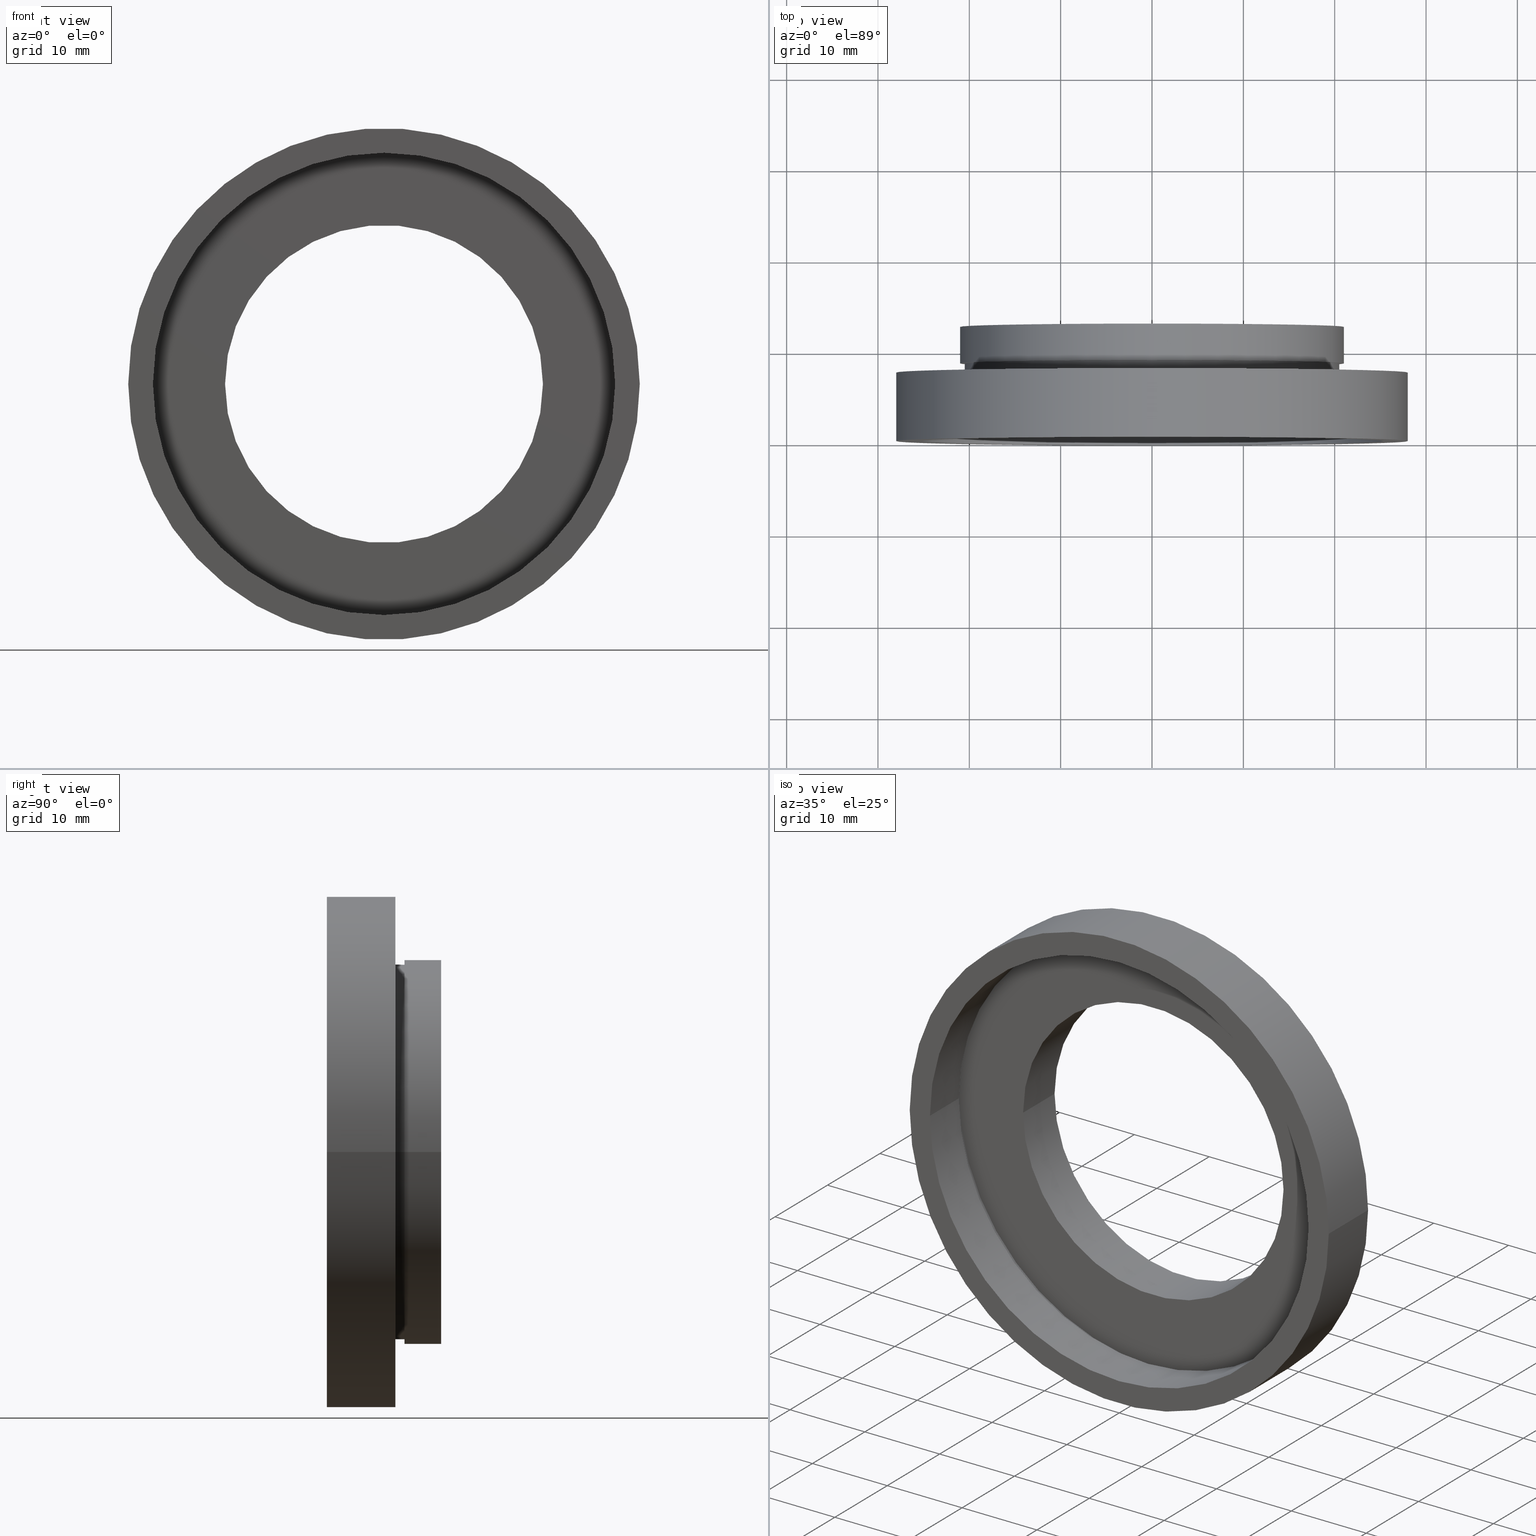
[diagram: canonical four-view strip — front | top / right | iso, engineering-drawing reading convention]
A machine part, canonical four-view strip (front | top / right | iso — engineering-drawing reading convention). The complete STEP part file that produces these views, byte-faithful:
ISO-10303-21;
HEADER;
FILE_DESCRIPTION (( 'STEP AP214' ),
    '1' );
FILE_NAME ('504098.STEP',
    '2019-10-08T02:53:30',
    ( '' ),
    ( '' ),
    'SwSTEP 2.0',
    'SolidWorks 2016',
    '' );
FILE_SCHEMA (( 'AUTOMOTIVE_DESIGN' ));
ENDSEC;

DATA;
#1 =( NAMED_UNIT ( * ) SI_UNIT ( $, .STERADIAN. ) SOLID_ANGLE_UNIT ( ) );
#2 = CIRCLE ( 'NONE', #318, 21.01000000000000200 ) ;
#3 = VECTOR ( 'NONE', #95, 1000.000000000000000 ) ;
#4 = ORIENTED_EDGE ( 'NONE', *, *, #256, .F. ) ;
#5 =( GEOMETRIC_REPRESENTATION_CONTEXT ( 3 ) GLOBAL_UNCERTAINTY_ASSIGNED_CONTEXT ( ( #262 ) ) GLOBAL_UNIT_ASSIGNED_CONTEXT ( ( #153, #622, #354 ) ) REPRESENTATION_CONTEXT ( 'NONE', 'WORKASPACE' ) );
#6 = CYLINDRICAL_SURFACE ( 'NONE', #329, 25.94999999999999900 ) ;
#7 = APPLICATION_CONTEXT ( 'automotive_design' ) ;
#8 = CARTESIAN_POINT ( 'NONE',  ( 25.94999999999999900, 5.499999999999998200, 3.177958443787381900E-015 ) ) ;
#9 = AXIS2_PLACEMENT_3D ( 'NONE', #376, #280, #601 ) ;
#10 = CARTESIAN_POINT ( 'NONE',  ( -20.50000000000000000, 7.499999999999995600, 0.0000000000000000000 ) ) ;
#11 = PLANE ( 'NONE',  #343 ) ;
#12 = CARTESIAN_POINT ( 'NONE',  ( 0.0000000000000000000, 16.88601823708207700, 0.0000000000000000000 ) ) ;
#13 = SURFACE_STYLE_FILL_AREA ( #469 ) ;
#14 =( NAMED_UNIT ( * ) SI_UNIT ( $, .STERADIAN. ) SOLID_ANGLE_UNIT ( ) );
#15 = COLOUR_RGB ( '',1.000000000000000000, 1.000000000000000000, 1.000000000000000000 ) ;
#16 = CARTESIAN_POINT ( 'NONE',  ( -20.50000000000000000, 8.499999999999996400, 0.0000000000000000000 ) ) ;
#17 = FILL_AREA_STYLE ('',( #413 ) ) ;
#18 = VECTOR ( 'NONE', #617, 1000.000000000000000 ) ;
#19 = EDGE_CURVE ( 'NONE', #191, #394, #35, .T. ) ;
#20 = AXIS2_PLACEMENT_3D ( 'NONE', #264, #586, #118 ) ;
#21 = LINE ( 'NONE', #41, #3 ) ;
#22 = AXIS2_PLACEMENT_3D ( 'NONE', #215, #449, #157 ) ;
#23 = ORIENTED_EDGE ( 'NONE', *, *, #589, .F. ) ;
#24 = ORIENTED_EDGE ( 'NONE', *, *, #177, .F. ) ;
#25 = CIRCLE ( 'NONE', #399, 21.01000000000000200 ) ;
#26 = CIRCLE ( 'NONE', #222, 25.94999999999999900 ) ;
#27 = CARTESIAN_POINT ( 'NONE',  ( 17.39999999999999900, 12.49999999999999800, 0.0000000000000000000 ) ) ;
#28 = EDGE_CURVE ( 'NONE', #140, #278, #225, .T. ) ;
#29 = VECTOR ( 'NONE', #247, 1000.000000000000000 ) ;
#30 = ORIENTED_EDGE ( 'NONE', *, *, #141, .F. ) ;
#31 = EDGE_CURVE ( 'NONE', #565, #553, #21, .T. ) ;
#32 = AXIS2_PLACEMENT_3D ( 'NONE', #120, #170, #223 ) ;
#33 = FACE_OUTER_BOUND ( 'NONE', #192, .T. ) ;
#34 = DIRECTION ( 'NONE',  ( -1.000000000000000000, -1.336973777246094200E-016, 0.0000000000000000000 ) ) ;
#35 = CIRCLE ( 'NONE', #40, 20.50000000000000000 ) ;
#36 = EDGE_LOOP ( 'NONE', ( #213, #520 ) ) ;
#37 = EDGE_LOOP ( 'NONE', ( #284, #55 ) ) ;
#38 = EDGE_LOOP ( 'NONE', ( #182, #282, #326, #229 ) ) ;
#39 = PRODUCT_RELATED_PRODUCT_CATEGORY ( 'part', '', ( #308 ) ) ;
#40 = AXIS2_PLACEMENT_3D ( 'NONE', #611, #432, #388 ) ;
#41 = CARTESIAN_POINT ( 'NONE',  ( 21.01000000000000200, 16.88601823708208000, 2.572982925008589200E-015 ) ) ;
#42 = CARTESIAN_POINT ( 'NONE',  ( 21.01000000000000200, 8.500000000000000000, 2.572982925008589200E-015 ) ) ;
#43 = ADVANCED_FACE ( 'NONE', ( #335 ), #175, .T. ) ;
#44 = APPLICATION_CONTEXT ( 'automotive_design' ) ;
#45 = VERTEX_POINT ( 'NONE', #307 ) ;
#46 = FILL_AREA_STYLE ('',( #54 ) ) ;
#47 = ADVANCED_FACE ( 'NONE', ( #543 ), #100, .T. ) ;
#48 = CARTESIAN_POINT ( 'NONE',  ( -25.30000000000000400, 16.88601823708207300, 0.0000000000000000000 ) ) ;
#49 = DIRECTION ( 'NONE',  ( -1.224646799147351000E-016, 1.000000000000000000, -0.0000000000000000000 ) ) ;
#50 = SURFACE_STYLE_USAGE ( .BOTH. , #393 ) ;
#51 = SURFACE_STYLE_FILL_AREA ( #168 ) ;
#52 = EDGE_LOOP ( 'NONE', ( #290, #350, #424, #533 ) ) ;
#53 = ORIENTED_EDGE ( 'NONE', *, *, #230, .T. ) ;
#54 = FILL_AREA_STYLE_COLOUR ( '', #426 ) ;
#55 = ORIENTED_EDGE ( 'NONE', *, *, #236, .F. ) ;
#56 = EDGE_CURVE ( 'NONE', #312, #511, #372, .T. ) ;
#57 = STYLED_ITEM ( 'NONE', ( #608 ), #249 ) ;
#58 = PRODUCT_CONTEXT ( 'NONE', #44, 'mechanical' ) ;
#59 = FACE_BOUND ( 'NONE', #437, .T. ) ;
#60 = DIRECTION ( 'NONE',  ( -1.224646799147351000E-016, 1.000000000000000000, -0.0000000000000000000 ) ) ;
#61 = ORIENTED_EDGE ( 'NONE', *, *, #108, .F. ) ;
#62 = SURFACE_STYLE_USAGE ( .BOTH. , #64 ) ;
#63 = DIRECTION ( 'NONE',  ( -1.000000000000000000, -1.371322905910519200E-016, 0.0000000000000000000 ) ) ;
#64 = SURFACE_SIDE_STYLE ('',( #455 ) ) ;
#65 = SURFACE_STYLE_FILL_AREA ( #17 ) ;
#66 = DIRECTION ( 'NONE',  ( 1.000000000000000000, 0.0000000000000000000, 0.0000000000000000000 ) ) ;
#67 = AXIS2_PLACEMENT_3D ( 'NONE', #83, #559, #188 ) ;
#68 = EDGE_CURVE ( 'NONE', #336, #394, #323, .T. ) ;
#69 = STYLED_ITEM ( 'NONE', ( #324 ), #299 ) ;
#70 = CIRCLE ( 'NONE', #243, 27.99999999999999600 ) ;
#71 =( NAMED_UNIT ( * ) PLANE_ANGLE_UNIT ( ) SI_UNIT ( $, .RADIAN. ) );
#72 = VERTEX_POINT ( 'NONE', #532 ) ;
#73 = ORIENTED_EDGE ( 'NONE', *, *, #504, .T. ) ;
#74 = SURFACE_SIDE_STYLE ('',( #303 ) ) ;
#75 = SURFACE_STYLE_FILL_AREA ( #84 ) ;
#76 = UNCERTAINTY_MEASURE_WITH_UNIT (LENGTH_MEASURE( 1.000000000000000100E-005 ), #154, 'distance_accuracy_value', 'NONE');
#77 = VERTEX_POINT ( 'NONE', #156 ) ;
#78 = AXIS2_PLACEMENT_3D ( 'NONE', #87, #133, #379 ) ;
#79 = SHAPE_DEFINITION_REPRESENTATION ( #503, #386 ) ;
#80 = FACE_OUTER_BOUND ( 'NONE', #37, .T. ) ;
#81 = CARTESIAN_POINT ( 'NONE',  ( 1.271920398992858200E-015, 6.499999999999995600, 0.0000000000000000000 ) ) ;
#82 = FACE_BOUND ( 'NONE', #555, .T. ) ;
#83 = CARTESIAN_POINT ( 'NONE',  ( 1.149455719078123100E-015, 7.499999999999996400, 0.0000000000000000000 ) ) ;
#84 = FILL_AREA_STYLE ('',( #340 ) ) ;
#85 = ORIENTED_EDGE ( 'NONE', *, *, #517, .T. ) ;
#86 = EDGE_LOOP ( 'NONE', ( #392, #489 ) ) ;
#87 = CARTESIAN_POINT ( 'NONE',  ( 0.0000000000000000000, 16.88601823708207700, 0.0000000000000000000 ) ) ;
#88 =( NAMED_UNIT ( * ) SI_UNIT ( $, .STERADIAN. ) SOLID_ANGLE_UNIT ( ) );
#89 = EDGE_LOOP ( 'NONE', ( #534, #291, #602, #106 ) ) ;
#90 = DIRECTION ( 'NONE',  ( -1.000000000000000000, -1.651331247955075700E-016, 0.0000000000000000000 ) ) ;
#91 = EDGE_CURVE ( 'NONE', #431, #511, #116, .T. ) ;
#92 =( GEOMETRIC_REPRESENTATION_CONTEXT ( 3 ) GLOBAL_UNCERTAINTY_ASSIGNED_CONTEXT ( ( #76 ) ) GLOBAL_UNIT_ASSIGNED_CONTEXT ( ( #154, #536, #1 ) ) REPRESENTATION_CONTEXT ( 'NONE', 'WORKASPACE' ) );
#93 = CARTESIAN_POINT ( 'NONE',  ( 0.0000000000000000000, 16.88601823708207700, 0.0000000000000000000 ) ) ;
#94 = AXIS2_PLACEMENT_3D ( 'NONE', #476, #488, #66 ) ;
#95 = DIRECTION ( 'NONE',  ( -1.224646799147351000E-016, 1.000000000000000000, -0.0000000000000000000 ) ) ;
#96 = ORIENTED_EDGE ( 'NONE', *, *, #236, .T. ) ;
#97 = UNCERTAINTY_MEASURE_WITH_UNIT (LENGTH_MEASURE( 1.000000000000000100E-005 ), #510, 'distance_accuracy_value', 'NONE');
#98 = FACE_OUTER_BOUND ( 'NONE', #52, .T. ) ;
#99 = CARTESIAN_POINT ( 'NONE',  ( 27.99999999999999600, 16.88601823708208000, 3.429011037612588900E-015 ) ) ;
#100 = CYLINDRICAL_SURFACE ( 'NONE', #409, 21.01000000000000200 ) ;
#101 = CARTESIAN_POINT ( 'NONE',  ( 1.026991039163387700E-015, 8.499999999999998200, 0.0000000000000000000 ) ) ;
#102 = ADVANCED_FACE ( 'NONE', ( #82, #255 ), #351, .F. ) ;
#103 = MECHANICAL_DESIGN_GEOMETRIC_PRESENTATION_REPRESENTATION (  '', ( #557 ), #173 ) ;
#104 = FACE_OUTER_BOUND ( 'NONE', #412, .T. ) ;
#105 = DIRECTION ( 'NONE',  ( -1.224646799147351000E-016, 1.000000000000000000, -0.0000000000000000000 ) ) ;
#106 = ORIENTED_EDGE ( 'NONE', *, *, #548, .F. ) ;
#107 = SURFACE_SIDE_STYLE ('',( #51 ) ) ;
#108 = EDGE_CURVE ( 'NONE', #310, #278, #180, .T. ) ;
#109 = EDGE_LOOP ( 'NONE', ( #363, #186 ) ) ;
#110 = AXIS2_PLACEMENT_3D ( 'NONE', #541, #268, #126 ) ;
#111 = CARTESIAN_POINT ( 'NONE',  ( -25.29999999999999700, -6.567803353796412200E-015, 0.0000000000000000000 ) ) ;
#112 = DIRECTION ( 'NONE',  ( -1.000000000000000000, -1.224646799147351000E-016, 0.0000000000000000000 ) ) ;
#113 = ORIENTED_EDGE ( 'NONE', *, *, #141, .T. ) ;
#114 = DIRECTION ( 'NONE',  ( -1.000000000000000000, -9.969675149291995700E-017, 0.0000000000000000000 ) ) ;
#115 = CARTESIAN_POINT ( 'NONE',  ( 1.394385078907593400E-015, 5.499999999999994700, 0.0000000000000000000 ) ) ;
#116 = LINE ( 'NONE', #159, #509 ) ;
#117 = AXIS2_PLACEMENT_3D ( 'NONE', #416, #204, #528 ) ;
#118 = DIRECTION ( 'NONE',  ( -1.000000000000000000, -9.969675149291995700E-017, 0.0000000000000000000 ) ) ;
#119 = AXIS2_PLACEMENT_3D ( 'NONE', #27, #369, #423 ) ;
#120 = CARTESIAN_POINT ( 'NONE',  ( 20.50000000000000000, 7.499999999999999100, 0.0000000000000000000 ) ) ;
#121 = PLANE ( 'NONE',  #32 ) ;
#122 = FACE_OUTER_BOUND ( 'NONE', #38, .T. ) ;
#123 = DIRECTION ( 'NONE',  ( -1.000000000000000000, -1.371322905910519200E-016, 0.0000000000000000000 ) ) ;
#124 = EDGE_LOOP ( 'NONE', ( #375, #270 ) ) ;
#125 = DIRECTION ( 'NONE',  ( -1.224646799147351000E-016, 1.000000000000000000, 0.0000000000000000000 ) ) ;
#126 = DIRECTION ( 'NONE',  ( -1.000000000000000000, -1.224646799147351000E-016, 0.0000000000000000000 ) ) ;
#127 = EDGE_CURVE ( 'NONE', #45, #131, #298, .T. ) ;
#128 = PRESENTATION_LAYER_ASSIGNMENT (  '', '', ( #69 ) ) ;
#129 = FACE_OUTER_BOUND ( 'NONE', #563, .T. ) ;
#130 = AXIS2_PLACEMENT_3D ( 'NONE', #556, #373, #34 ) ;
#131 = VERTEX_POINT ( 'NONE', #238 ) ;
#132 = EDGE_LOOP ( 'NONE', ( #164, #24 ) ) ;
#133 = DIRECTION ( 'NONE',  ( -1.224646799147351000E-016, 1.000000000000000000, -0.0000000000000000000 ) ) ;
#134 = CARTESIAN_POINT ( 'NONE',  ( 1.149455719078123100E-015, 7.499999999999996400, 0.0000000000000000000 ) ) ;
#135 = FACE_BOUND ( 'NONE', #109, .T. ) ;
#136 = VECTOR ( 'NONE', #212, 1000.000000000000000 ) ;
#137 = DIRECTION ( 'NONE',  ( -1.000000000000000000, -1.336973777246094200E-016, 0.0000000000000000000 ) ) ;
#138 = AXIS2_PLACEMENT_3D ( 'NONE', #391, #439, #479 ) ;
#139 =( LENGTH_UNIT ( ) NAMED_UNIT ( * ) SI_UNIT ( .MILLI., .METRE. ) );
#140 = VERTEX_POINT ( 'NONE', #615 ) ;
#141 = EDGE_CURVE ( 'NONE', #162, #553, #2, .T. ) ;
#142 =( GEOMETRIC_REPRESENTATION_CONTEXT ( 3 ) GLOBAL_UNCERTAINTY_ASSIGNED_CONTEXT ( ( #475 ) ) GLOBAL_UNIT_ASSIGNED_CONTEXT ( ( #320, #501, #459 ) ) REPRESENTATION_CONTEXT ( 'NONE', 'WORKASPACE' ) );
#143 = CIRCLE ( 'NONE', #117, 21.01000000000000200 ) ;
#144 = DIRECTION ( 'NONE',  ( -1.224646799147351000E-016, 1.000000000000000000, -0.0000000000000000000 ) ) ;
#145 = CIRCLE ( 'NONE', #619, 25.30000000000000400 ) ;
#146 = AXIS2_PLACEMENT_3D ( 'NONE', #355, #575, #390 ) ;
#147 = FILL_AREA_STYLE_COLOUR ( '', #564 ) ;
#148 = AXIS2_PLACEMENT_3D ( 'NONE', #332, #464, #234 ) ;
#149 = ADVANCED_FACE ( 'NONE', ( #599 ), #387, .T. ) ;
#150 = CARTESIAN_POINT ( 'NONE',  ( 17.39999999999999900, 12.49999999999999800, 2.130885430516394500E-015 ) ) ;
#151 = VERTEX_POINT ( 'NONE', #596 ) ;
#152 = PRESENTATION_STYLE_ASSIGNMENT (( #568 ) ) ;
#153 =( LENGTH_UNIT ( ) NAMED_UNIT ( * ) SI_UNIT ( .MILLI., .METRE. ) );
#154 =( LENGTH_UNIT ( ) NAMED_UNIT ( * ) SI_UNIT ( .MILLI., .METRE. ) );
#155 = ADVANCED_FACE ( 'NONE', ( #122 ), #502, .F. ) ;
#156 = CARTESIAN_POINT ( 'NONE',  ( -17.39999999999999900, 6.499999999999995600, 0.0000000000000000000 ) ) ;
#157 = DIRECTION ( 'NONE',  ( -1.000000000000000000, -1.692413147294446000E-016, 0.0000000000000000000 ) ) ;
#158 = DIRECTION ( 'NONE',  ( -1.224646799147351000E-016, 1.000000000000000000, -0.0000000000000000000 ) ) ;
#159 = CARTESIAN_POINT ( 'NONE',  ( 17.39999999999999900, 16.88601823708208000, 2.130885430516394500E-015 ) ) ;
#160 = DIRECTION ( 'NONE',  ( -1.224646799147351000E-016, 1.000000000000000000, -0.0000000000000000000 ) ) ;
#161 = ORIENTED_EDGE ( 'NONE', *, *, #293, .F. ) ;
#162 = VERTEX_POINT ( 'NONE', #429 ) ;
#163 = EDGE_CURVE ( 'NONE', #571, #461, #380, .T. ) ;
#164 = ORIENTED_EDGE ( 'NONE', *, *, #56, .F. ) ;
#165 = ORIENTED_EDGE ( 'NONE', *, *, #427, .T. ) ;
#166 = MECHANICAL_DESIGN_GEOMETRIC_PRESENTATION_REPRESENTATION (  '', ( #57 ), #92 ) ;
#167 = AXIS2_PLACEMENT_3D ( 'NONE', #297, #485, #325 ) ;
#168 = FILL_AREA_STYLE ('',( #253 ) ) ;
#169 = DIRECTION ( 'NONE',  ( -1.224646799147351000E-016, 1.000000000000000000, -0.0000000000000000000 ) ) ;
#170 = DIRECTION ( 'NONE',  ( 1.224646799147351000E-016, -1.000000000000000000, 0.0000000000000000000 ) ) ;
#171 = CIRCLE ( 'NONE', #205, 28.00000000000000000 ) ;
#172 = EDGE_LOOP ( 'NONE', ( #85, #302, #30, #23 ) ) ;
#173 =( GEOMETRIC_REPRESENTATION_CONTEXT ( 3 ) GLOBAL_UNCERTAINTY_ASSIGNED_CONTEXT ( ( #97 ) ) GLOBAL_UNIT_ASSIGNED_CONTEXT ( ( #510, #285, #189 ) ) REPRESENTATION_CONTEXT ( 'NONE', 'WORKASPACE' ) );
#174 = DIRECTION ( 'NONE',  ( -1.224646799147351000E-016, 1.000000000000000000, -0.0000000000000000000 ) ) ;
#175 = CYLINDRICAL_SURFACE ( 'NONE', #587, 20.50000000000000000 ) ;
#176 =( LENGTH_UNIT ( ) NAMED_UNIT ( * ) SI_UNIT ( .MILLI., .METRE. ) );
#177 = EDGE_CURVE ( 'NONE', #511, #312, #443, .T. ) ;
#178 = MECHANICAL_DESIGN_GEOMETRIC_PRESENTATION_REPRESENTATION (  '', ( #578 ), #210 ) ;
#179 = FILL_AREA_STYLE ('',( #147 ) ) ;
#180 = CIRCLE ( 'NONE', #67, 28.00000000000000000 ) ;
#181 = SURFACE_SIDE_STYLE ('',( #65 ) ) ;
#182 = ORIENTED_EDGE ( 'NONE', *, *, #618, .F. ) ;
#183 = AXIS2_PLACEMENT_3D ( 'NONE', #115, #254, #344 ) ;
#184 = PLANE ( 'NONE',  #148 ) ;
#185 = PRESENTATION_LAYER_ASSIGNMENT (  '', '', ( #494 ) ) ;
#186 = ORIENTED_EDGE ( 'NONE', *, *, #274, .T. ) ;
#187 = COLOUR_RGB ( '',1.000000000000000000, 1.000000000000000000, 1.000000000000000000 ) ;
#188 = DIRECTION ( 'NONE',  ( -1.000000000000000000, -1.239088197126290800E-016, 0.0000000000000000000 ) ) ;
#189 =( NAMED_UNIT ( * ) SI_UNIT ( $, .STERADIAN. ) SOLID_ANGLE_UNIT ( ) );
#190 = VECTOR ( 'NONE', #144, 1000.000000000000000 ) ;
#191 = VERTEX_POINT ( 'NONE', #339 ) ;
#192 = EDGE_LOOP ( 'NONE', ( #200, #377 ) ) ;
#193 = DIRECTION ( 'NONE',  ( -1.000000000000000000, -1.371322905910519200E-016, 0.0000000000000000000 ) ) ;
#194 = CARTESIAN_POINT ( 'NONE',  ( 1.149455719078122700E-015, 7.499999999999998200, 0.0000000000000000000 ) ) ;
#195 = DIRECTION ( 'NONE',  ( -1.224646799147351000E-016, 1.000000000000000000, -0.0000000000000000000 ) ) ;
#196 = EDGE_CURVE ( 'NONE', #278, #310, #171, .T. ) ;
#197 = AXIS2_PLACEMENT_3D ( 'NONE', #357, #60, #311 ) ;
#198 = STYLED_ITEM ( 'NONE', ( #263 ), #440 ) ;
#199 = DIRECTION ( 'NONE',  ( -1.224646799147351000E-016, 1.000000000000000000, -0.0000000000000000000 ) ) ;
#200 = ORIENTED_EDGE ( 'NONE', *, *, #209, .F. ) ;
#201 = ADVANCED_FACE ( 'NONE', ( #33, #135 ), #184, .F. ) ;
#202 = CIRCLE ( 'NONE', #356, 17.39999999999999900 ) ;
#203 = DIRECTION ( 'NONE',  ( -1.000000000000000000, -1.692413147294446000E-016, 0.0000000000000000000 ) ) ;
#204 = DIRECTION ( 'NONE',  ( -1.224646799147351000E-016, 1.000000000000000000, -0.0000000000000000000 ) ) ;
#205 = AXIS2_PLACEMENT_3D ( 'NONE', #134, #421, #462 ) ;
#206 = ADVANCED_FACE ( 'NONE', ( #422, #104 ), #554, .F. ) ;
#207 = DIRECTION ( 'NONE',  ( -1.000000000000000000, -1.224646799147351000E-016, 0.0000000000000000000 ) ) ;
#208 = VECTOR ( 'NONE', #169, 1000.000000000000000 ) ;
#209 = EDGE_CURVE ( 'NONE', #461, #547, #529, .T. ) ;
#210 =( GEOMETRIC_REPRESENTATION_CONTEXT ( 3 ) GLOBAL_UNCERTAINTY_ASSIGNED_CONTEXT ( ( #366 ) ) GLOBAL_UNIT_ASSIGNED_CONTEXT ( ( #139, #467, #88 ) ) REPRESENTATION_CONTEXT ( 'NONE', 'WORKASPACE' ) );
#211 = EDGE_LOOP ( 'NONE', ( #562, #404, #321, #258 ) ) ;
#212 = DIRECTION ( 'NONE',  ( -1.224646799147351000E-016, 1.000000000000000000, -0.0000000000000000000 ) ) ;
#213 = ORIENTED_EDGE ( 'NONE', *, *, #558, .T. ) ;
#214 =( NAMED_UNIT ( * ) PLANE_ANGLE_UNIT ( ) SI_UNIT ( $, .RADIAN. ) );
#215 = CARTESIAN_POINT ( 'NONE',  ( 0.0000000000000000000, 16.88601823708207700, 0.0000000000000000000 ) ) ;
#216 = FACE_OUTER_BOUND ( 'NONE', #86, .T. ) ;
#217 = CARTESIAN_POINT ( 'NONE',  ( 1.271920398992858200E-015, 6.499999999999995600, 0.0000000000000000000 ) ) ;
#218 = VERTEX_POINT ( 'NONE', #598 ) ;
#219 = EDGE_CURVE ( 'NONE', #151, #191, #289, .T. ) ;
#220 = DIRECTION ( 'NONE',  ( -1.224646799147351000E-016, 1.000000000000000000, -0.0000000000000000000 ) ) ;
#221 = AXIS2_PLACEMENT_3D ( 'NONE', #486, #309, #112 ) ;
#222 = AXIS2_PLACEMENT_3D ( 'NONE', #217, #220, #405 ) ;
#223 = DIRECTION ( 'NONE',  ( 1.000000000000000000, 1.224646799147351000E-016, 0.0000000000000000000 ) ) ;
#224 = CARTESIAN_POINT ( 'NONE',  ( -28.00000000000000000, 7.499999999999992900, 0.0000000000000000000 ) ) ;
#225 = LINE ( 'NONE', #99, #457 ) ;
#226 = ORIENTED_EDGE ( 'NONE', *, *, #460, .F. ) ;
#227 = DIRECTION ( 'NONE',  ( -1.000000000000000000, -9.969675149291995700E-017, 0.0000000000000000000 ) ) ;
#228 = ORIENTED_EDGE ( 'NONE', *, *, #604, .T. ) ;
#229 = ORIENTED_EDGE ( 'NONE', *, *, #127, .T. ) ;
#230 = EDGE_CURVE ( 'NONE', #547, #461, #26, .T. ) ;
#231 = AXIS2_PLACEMENT_3D ( 'NONE', #496, #545, #539 ) ;
#232 = AXIS2_PLACEMENT_3D ( 'NONE', #101, #445, #434 ) ;
#233 = DIRECTION ( 'NONE',  ( -1.224646799147351000E-016, 1.000000000000000000, -0.0000000000000000000 ) ) ;
#234 = DIRECTION ( 'NONE',  ( -1.000000000000000000, -1.224646799147351000E-016, 0.0000000000000000000 ) ) ;
#235 = ORIENTED_EDGE ( 'NONE', *, *, #460, .T. ) ;
#236 = EDGE_CURVE ( 'NONE', #140, #218, #70, .T. ) ;
#237 = PRESENTATION_LAYER_ASSIGNMENT (  '', '', ( #257 ) ) ;
#238 = CARTESIAN_POINT ( 'NONE',  ( 25.30000000000000400, 5.499999999999998200, 3.098356401842804300E-015 ) ) ;
#239 = ORIENTED_EDGE ( 'NONE', *, *, #487, .F. ) ;
#240 = AXIS2_PLACEMENT_3D ( 'NONE', #385, #438, #207 ) ;
#241 = FACE_BOUND ( 'NONE', #581, .T. ) ;
#242 = CARTESIAN_POINT ( 'NONE',  ( 0.0000000000000000000, 16.88601823708207700, 0.0000000000000000000 ) ) ;
#243 = AXIS2_PLACEMENT_3D ( 'NONE', #481, #49, #261 ) ;
#244 = ADVANCED_FACE ( 'NONE', ( #129 ), #276, .F. ) ;
#245 = CARTESIAN_POINT ( 'NONE',  ( -21.01000000000000200, 16.88601823708207300, 0.0000000000000000000 ) ) ;
#246 = FACE_OUTER_BOUND ( 'NONE', #89, .T. ) ;
#247 = DIRECTION ( 'NONE',  ( -1.224646799147351000E-016, 1.000000000000000000, -0.0000000000000000000 ) ) ;
#248 = ORIENTED_EDGE ( 'NONE', *, *, #28, .T. ) ;
#249 = ADVANCED_FACE ( 'NONE', ( #401 ), #334, .F. ) ;
#250 =( NAMED_UNIT ( * ) SI_UNIT ( $, .STERADIAN. ) SOLID_ANGLE_UNIT ( ) );
#251 = ORIENTED_EDGE ( 'NONE', *, *, #577, .T. ) ;
#252 = DIRECTION ( 'NONE',  ( -1.224646799147351000E-016, 1.000000000000000000, -0.0000000000000000000 ) ) ;
#253 = FILL_AREA_STYLE_COLOUR ( '', #613 ) ;
#254 = DIRECTION ( 'NONE',  ( -1.224646799147351000E-016, 1.000000000000000000, -0.0000000000000000000 ) ) ;
#255 = FACE_OUTER_BOUND ( 'NONE', #36, .T. ) ;
#256 = EDGE_CURVE ( 'NONE', #394, #191, #546, .T. ) ;
#257 = STYLED_ITEM ( 'NONE', ( #360 ), #419 ) ;
#258 = ORIENTED_EDGE ( 'NONE', *, *, #56, .T. ) ;
#259 = PRODUCT_DEFINITION ( 'δ֪', '', #295, #597 ) ;
#260 = EDGE_LOOP ( 'NONE', ( #550, #499 ) ) ;
#261 = DIRECTION ( 'NONE',  ( -1.000000000000000000, -1.224646799147351200E-016, 0.0000000000000000000 ) ) ;
#262 = UNCERTAINTY_MEASURE_WITH_UNIT (LENGTH_MEASURE( 1.000000000000000100E-005 ), #153, 'distance_accuracy_value', 'NONE');
#263 = PRESENTATION_STYLE_ASSIGNMENT (( #271 ) ) ;
#264 = CARTESIAN_POINT ( 'NONE',  ( 1.271920398992858000E-015, 6.499999999999997300, 0.0000000000000000000 ) ) ;
#265 = CARTESIAN_POINT ( 'NONE',  ( -27.99999999999999600, 16.88601823708207300, 0.0000000000000000000 ) ) ;
#266 = DIRECTION ( 'NONE',  ( -1.000000000000000000, -8.256656239775378400E-017, 0.0000000000000000000 ) ) ;
#267 = DIRECTION ( 'NONE',  ( -1.000000000000000000, -1.336973777246094200E-016, 0.0000000000000000000 ) ) ;
#268 = DIRECTION ( 'NONE',  ( -1.224646799147351000E-016, 1.000000000000000000, 0.0000000000000000000 ) ) ;
#269 = APPLICATION_PROTOCOL_DEFINITION ( 'draft international standard', 'automotive_design', 1998, #7 ) ;
#270 = ORIENTED_EDGE ( 'NONE', *, *, #19, .T. ) ;
#271 = SURFACE_STYLE_USAGE ( .BOTH. , #74 ) ;
#272 = CIRCLE ( 'NONE', #167, 27.99999999999999600 ) ;
#273 = DIRECTION ( 'NONE',  ( -1.224646799147351000E-016, 1.000000000000000000, -0.0000000000000000000 ) ) ;
#274 = EDGE_CURVE ( 'NONE', #431, #77, #371, .T. ) ;
#275 = MECHANICAL_DESIGN_GEOMETRIC_PRESENTATION_REPRESENTATION (  '', ( #69 ), #306 ) ;
#276 = CYLINDRICAL_SURFACE ( 'NONE', #518, 25.94999999999999900 ) ;
#277 = ORIENTED_EDGE ( 'NONE', *, *, #305, .F. ) ;
#278 = VERTEX_POINT ( 'NONE', #576 ) ;
#279 = CIRCLE ( 'NONE', #240, 25.30000000000000100 ) ;
#280 = DIRECTION ( 'NONE',  ( -1.224646799147351000E-016, 1.000000000000000000, -0.0000000000000000000 ) ) ;
#281 = CARTESIAN_POINT ( 'NONE',  ( -25.94999999999999900, 6.499999999999992000, 0.0000000000000000000 ) ) ;
#282 = ORIENTED_EDGE ( 'NONE', *, *, #604, .F. ) ;
#283 = CIRCLE ( 'NONE', #221, 25.30000000000000100 ) ;
#284 = ORIENTED_EDGE ( 'NONE', *, *, #504, .F. ) ;
#285 =( NAMED_UNIT ( * ) PLANE_ANGLE_UNIT ( ) SI_UNIT ( $, .RADIAN. ) );
#286 = SURFACE_STYLE_FILL_AREA ( #46 ) ;
#287 = DIRECTION ( 'NONE',  ( -1.224646799147351000E-016, 1.000000000000000000, -0.0000000000000000000 ) ) ;
#288 = CARTESIAN_POINT ( 'NONE',  ( 17.39999999999999900, 6.499999999999999100, 2.130885430516394500E-015 ) ) ;
#289 = LINE ( 'NONE', #452, #18 ) ;
#290 = ORIENTED_EDGE ( 'NONE', *, *, #31, .F. ) ;
#291 = ORIENTED_EDGE ( 'NONE', *, *, #618, .T. ) ;
#292 = VERTEX_POINT ( 'NONE', #8 ) ;
#293 = EDGE_CURVE ( 'NONE', #218, #310, #560, .T. ) ;
#294 = MECHANICAL_DESIGN_GEOMETRIC_PRESENTATION_REPRESENTATION (  '', ( #257 ), #142 ) ;
#295 = PRODUCT_DEFINITION_FORMATION_WITH_SPECIFIED_SOURCE ( '�κ�', '', #308, .NOT_KNOWN. ) ;
#296 = CIRCLE ( 'NONE', #183, 25.94999999999999900 ) ;
#297 = CARTESIAN_POINT ( 'NONE',  ( 2.067940818438636500E-015, -3.469446951953614200E-015, 0.0000000000000000000 ) ) ;
#298 = CIRCLE ( 'NONE', #566, 25.30000000000000400 ) ;
#299 = ADVANCED_FACE ( 'NONE', ( #246 ), #450, .F. ) ;
#300 = DIRECTION ( 'NONE',  ( -1.000000000000000000, -1.993935029858399100E-016, 0.0000000000000000000 ) ) ;
#301 = CARTESIAN_POINT ( 'NONE',  ( -20.50000000000000000, 16.88601823708207300, 0.0000000000000000000 ) ) ;
#302 = ORIENTED_EDGE ( 'NONE', *, *, #31, .T. ) ;
#303 = SURFACE_STYLE_FILL_AREA ( #179 ) ;
#304 = APPLICATION_PROTOCOL_DEFINITION ( 'draft international standard', 'automotive_design', 1998, #44 ) ;
#305 = EDGE_CURVE ( 'NONE', #151, #336, #579, .T. ) ;
#306 =( GEOMETRIC_REPRESENTATION_CONTEXT ( 3 ) GLOBAL_UNCERTAINTY_ASSIGNED_CONTEXT ( ( #580 ) ) GLOBAL_UNIT_ASSIGNED_CONTEXT ( ( #408, #319, #14 ) ) REPRESENTATION_CONTEXT ( 'NONE', 'WORKASPACE' ) );
#307 = CARTESIAN_POINT ( 'NONE',  ( -25.30000000000000400, 5.499999999999991100, 0.0000000000000000000 ) ) ;
#308 = PRODUCT ( '504098', '504098', '', ( #58 ) ) ;
#309 = DIRECTION ( 'NONE',  ( -1.224646799147351000E-016, 1.000000000000000000, -0.0000000000000000000 ) ) ;
#310 = VERTEX_POINT ( 'NONE', #224 ) ;
#311 = DIRECTION ( 'NONE',  ( -1.000000000000000000, -1.993935029858399100E-016, 0.0000000000000000000 ) ) ;
#312 = VERTEX_POINT ( 'NONE', #492 ) ;
#313 = ORIENTED_EDGE ( 'NONE', *, *, #219, .T. ) ;
#314 = CARTESIAN_POINT ( 'NONE',  ( 1.026991039163387700E-015, 8.499999999999998200, 0.0000000000000000000 ) ) ;
#315 = DIRECTION ( 'NONE',  ( -1.224646799147351000E-016, 1.000000000000000000, -0.0000000000000000000 ) ) ;
#316 = CLOSED_SHELL ( 'NONE', ( #149, #43, #47, #435, #244, #299, #389, #155, #102, #396, #201, #249, #206, #440, #482, #567, #352, #570 ) ) ;
#317 =( GEOMETRIC_REPRESENTATION_CONTEXT ( 3 ) GLOBAL_UNCERTAINTY_ASSIGNED_CONTEXT ( ( #433 ) ) GLOBAL_UNIT_ASSIGNED_CONTEXT ( ( #176, #71, #414 ) ) REPRESENTATION_CONTEXT ( 'NONE', 'WORKASPACE' ) );
#318 = AXIS2_PLACEMENT_3D ( 'NONE', #561, #287, #508 ) ;
#319 =( NAMED_UNIT ( * ) PLANE_ANGLE_UNIT ( ) SI_UNIT ( $, .RADIAN. ) );
#320 =( LENGTH_UNIT ( ) NAMED_UNIT ( * ) SI_UNIT ( .MILLI., .METRE. ) );
#321 = ORIENTED_EDGE ( 'NONE', *, *, #364, .T. ) ;
#322 = FACE_OUTER_BOUND ( 'NONE', #260, .T. ) ;
#323 = LINE ( 'NONE', #301, #136 ) ;
#324 = PRESENTATION_STYLE_ASSIGNMENT (( #62 ) ) ;
#325 = DIRECTION ( 'NONE',  ( -1.000000000000000000, -1.224646799147351200E-016, 0.0000000000000000000 ) ) ;
#326 = ORIENTED_EDGE ( 'NONE', *, *, #548, .T. ) ;
#327 = CARTESIAN_POINT ( 'NONE',  ( 0.0000000000000000000, 16.88601823708207700, 0.0000000000000000000 ) ) ;
#328 = COLOUR_RGB ( '',1.000000000000000000, 1.000000000000000000, 1.000000000000000000 ) ;
#329 = AXIS2_PLACEMENT_3D ( 'NONE', #590, #544, #267 ) ;
#330 = AXIS2_PLACEMENT_3D ( 'NONE', #327, #523, #90 ) ;
#331 = ORIENTED_EDGE ( 'NONE', *, *, #28, .F. ) ;
#332 = CARTESIAN_POINT ( 'NONE',  ( 17.39999999999999900, 6.499999999999998200, 0.0000000000000000000 ) ) ;
#333 = CARTESIAN_POINT ( 'NONE',  ( -25.94999999999999900, 16.88601823708207300, 0.0000000000000000000 ) ) ;
#334 = CYLINDRICAL_SURFACE ( 'NONE', #197, 17.39999999999999900 ) ;
#335 = FACE_OUTER_BOUND ( 'NONE', #381, .T. ) ;
#336 = VERTEX_POINT ( 'NONE', #10 ) ;
#337 = EDGE_CURVE ( 'NONE', #131, #45, #145, .T. ) ;
#338 = PRESENTATION_LAYER_ASSIGNMENT (  '', '', ( #57 ) ) ;
#339 = CARTESIAN_POINT ( 'NONE',  ( 20.50000000000000000, 8.500000000000000000, 2.510525938252074500E-015 ) ) ;
#340 = FILL_AREA_STYLE_COLOUR ( '', #328 ) ;
#341 = CYLINDRICAL_SURFACE ( 'NONE', #505, 17.39999999999999900 ) ;
#342 = EDGE_CURVE ( 'NONE', #553, #162, #25, .T. ) ;
#343 = AXIS2_PLACEMENT_3D ( 'NONE', #362, #125, #456 ) ;
#344 = DIRECTION ( 'NONE',  ( -1.000000000000000000, -1.336973777246094200E-016, 0.0000000000000000000 ) ) ;
#345 = CYLINDRICAL_SURFACE ( 'NONE', #146, 27.99999999999999600 ) ;
#346 = VECTOR ( 'NONE', #174, 1000.000000000000000 ) ;
#347 = CARTESIAN_POINT ( 'NONE',  ( -25.94999999999999900, 5.499999999999991100, 0.0000000000000000000 ) ) ;
#348 = FILL_AREA_STYLE ('',( #616 ) ) ;
#349 = ORIENTED_EDGE ( 'NONE', *, *, #342, .T. ) ;
#350 = ORIENTED_EDGE ( 'NONE', *, *, #507, .T. ) ;
#351 = PLANE ( 'NONE',  #138 ) ;
#352 = ADVANCED_FACE ( 'NONE', ( #59, #322 ), #121, .F. ) ;
#353 = ORIENTED_EDGE ( 'NONE', *, *, #196, .F. ) ;
#354 =( NAMED_UNIT ( * ) SI_UNIT ( $, .STERADIAN. ) SOLID_ANGLE_UNIT ( ) );
#355 = CARTESIAN_POINT ( 'NONE',  ( 0.0000000000000000000, 16.88601823708207700, 0.0000000000000000000 ) ) ;
#356 = AXIS2_PLACEMENT_3D ( 'NONE', #498, #273, #227 ) ;
#357 = CARTESIAN_POINT ( 'NONE',  ( 0.0000000000000000000, 16.88601823708207700, 0.0000000000000000000 ) ) ;
#358 = FILL_AREA_STYLE_COLOUR ( '', #569 ) ;
#359 = VECTOR ( 'NONE', #624, 1000.000000000000000 ) ;
#360 = PRESENTATION_STYLE_ASSIGNMENT (( #415 ) ) ;
#361 = FILL_AREA_STYLE ('',( #358 ) ) ;
#362 = CARTESIAN_POINT ( 'NONE',  ( 21.01000000000000200, 8.500000000000000000, 0.0000000000000000000 ) ) ;
#363 = ORIENTED_EDGE ( 'NONE', *, *, #398, .T. ) ;
#364 = EDGE_CURVE ( 'NONE', #77, #312, #407, .T. ) ;
#365 = AXIS2_PLACEMENT_3D ( 'NONE', #314, #491, #582 ) ;
#366 = UNCERTAINTY_MEASURE_WITH_UNIT (LENGTH_MEASURE( 1.000000000000000100E-005 ), #139, 'distance_accuracy_value', 'NONE');
#367 = LINE ( 'NONE', #48, #29 ) ;
#368 = VECTOR ( 'NONE', #195, 1000.000000000000000 ) ;
#369 = DIRECTION ( 'NONE',  ( 1.224646799147351000E-016, -1.000000000000000000, 0.0000000000000000000 ) ) ;
#370 = AXIS2_PLACEMENT_3D ( 'NONE', #81, #425, #137 ) ;
#371 = CIRCLE ( 'NONE', #20, 17.39999999999999900 ) ;
#372 = CIRCLE ( 'NONE', #538, 17.39999999999999900 ) ;
#373 = DIRECTION ( 'NONE',  ( -1.224646799147351000E-016, 1.000000000000000000, -0.0000000000000000000 ) ) ;
#374 = SURFACE_STYLE_USAGE ( .BOTH. , #470 ) ;
#375 = ORIENTED_EDGE ( 'NONE', *, *, #256, .T. ) ;
#376 = CARTESIAN_POINT ( 'NONE',  ( 5.371323195044474300E-016, 12.49999999999999600, 0.0000000000000000000 ) ) ;
#377 = ORIENTED_EDGE ( 'NONE', *, *, #230, .F. ) ;
#378 = CIRCLE ( 'NONE', #130, 25.94999999999999900 ) ;
#379 = DIRECTION ( 'NONE',  ( -1.000000000000000000, -1.239088197126290800E-016, 0.0000000000000000000 ) ) ;
#380 = LINE ( 'NONE', #333, #190 ) ;
#381 = EDGE_LOOP ( 'NONE', ( #165, #313, #4, #418 ) ) ;
#382 = ORIENTED_EDGE ( 'NONE', *, *, #163, .F. ) ;
#383 = DIRECTION ( 'NONE',  ( -1.224646799147351000E-016, 1.000000000000000000, -0.0000000000000000000 ) ) ;
#384 = STYLED_ITEM ( 'NONE', ( #406 ), #386 ) ;
#385 = CARTESIAN_POINT ( 'NONE',  ( 2.067940818438636500E-015, -3.469446951953614200E-015, 0.0000000000000000000 ) ) ;
#386 = ADVANCED_BREP_SHAPE_REPRESENTATION ( '504098', ( #419, #94 ), #451 ) ;
#387 = CYLINDRICAL_SURFACE ( 'NONE', #78, 27.99999999999999600 ) ;
#388 = DIRECTION ( 'NONE',  ( -1.000000000000000000, -8.462065736472229800E-017, 0.0000000000000000000 ) ) ;
#389 = ADVANCED_FACE ( 'NONE', ( #80, #241 ), #495, .F. ) ;
#390 = DIRECTION ( 'NONE',  ( -1.000000000000000000, -1.239088197126290800E-016, 0.0000000000000000000 ) ) ;
#391 = CARTESIAN_POINT ( 'NONE',  ( 25.30000000000000400, 5.499999999999999100, 0.0000000000000000000 ) ) ;
#392 = ORIENTED_EDGE ( 'NONE', *, *, #517, .F. ) ;
#393 = SURFACE_SIDE_STYLE ('',( #436 ) ) ;
#394 = VERTEX_POINT ( 'NONE', #16 ) ;
#395 = CARTESIAN_POINT ( 'NONE',  ( 0.0000000000000000000, 16.88601823708207700, 0.0000000000000000000 ) ) ;
#396 = ADVANCED_FACE ( 'NONE', ( #594 ), #6, .F. ) ;
#397 =( LENGTH_UNIT ( ) NAMED_UNIT ( * ) SI_UNIT ( .MILLI., .METRE. ) );
#398 = EDGE_CURVE ( 'NONE', #77, #431, #202, .T. ) ;
#399 = AXIS2_PLACEMENT_3D ( 'NONE', #540, #588, #266 ) ;
#400 = CARTESIAN_POINT ( 'NONE',  ( 5.371323195044474300E-016, 12.49999999999999600, 0.0000000000000000000 ) ) ;
#401 = FACE_OUTER_BOUND ( 'NONE', #211, .T. ) ;
#402 = ORIENTED_EDGE ( 'NONE', *, *, #127, .F. ) ;
#403 = ORIENTED_EDGE ( 'NONE', *, *, #68, .T. ) ;
#404 = ORIENTED_EDGE ( 'NONE', *, *, #398, .F. ) ;
#405 = DIRECTION ( 'NONE',  ( -1.000000000000000000, -1.336973777246094200E-016, 0.0000000000000000000 ) ) ;
#406 = PRESENTATION_STYLE_ASSIGNMENT (( #50 ) ) ;
#407 = LINE ( 'NONE', #410, #346 ) ;
#408 =( LENGTH_UNIT ( ) NAMED_UNIT ( * ) SI_UNIT ( .MILLI., .METRE. ) );
#409 = AXIS2_PLACEMENT_3D ( 'NONE', #483, #623, #444 ) ;
#410 = CARTESIAN_POINT ( 'NONE',  ( -17.39999999999999900, 16.88601823708207300, 0.0000000000000000000 ) ) ;
#411 = DIRECTION ( 'NONE',  ( -1.224646799147351000E-016, 1.000000000000000000, -0.0000000000000000000 ) ) ;
#412 = EDGE_LOOP ( 'NONE', ( #113, #349 ) ) ;
#413 = FILL_AREA_STYLE_COLOUR ( '', #187 ) ;
#414 =( NAMED_UNIT ( * ) SI_UNIT ( $, .STERADIAN. ) SOLID_ANGLE_UNIT ( ) );
#415 = SURFACE_STYLE_USAGE ( .BOTH. , #181 ) ;
#416 = CARTESIAN_POINT ( 'NONE',  ( 1.026991039163387700E-015, 8.499999999999998200, 0.0000000000000000000 ) ) ;
#417 = ORIENTED_EDGE ( 'NONE', *, *, #91, .T. ) ;
#418 = ORIENTED_EDGE ( 'NONE', *, *, #68, .F. ) ;
#419 = MANIFOLD_SOLID_BREP ( '��ת1', #316 ) ;
#420 = PRESENTATION_LAYER_ASSIGNMENT (  '', '', ( #384 ) ) ;
#421 = DIRECTION ( 'NONE',  ( -1.224646799147351000E-016, 1.000000000000000000, -0.0000000000000000000 ) ) ;
#422 = FACE_BOUND ( 'NONE', #132, .T. ) ;
#423 = DIRECTION ( 'NONE',  ( 1.000000000000000000, 1.224646799147351000E-016, 0.0000000000000000000 ) ) ;
#424 = ORIENTED_EDGE ( 'NONE', *, *, #589, .T. ) ;
#425 = DIRECTION ( 'NONE',  ( -1.224646799147351000E-016, 1.000000000000000000, -0.0000000000000000000 ) ) ;
#426 = COLOUR_RGB ( '',1.000000000000000000, 1.000000000000000000, 1.000000000000000000 ) ;
#427 = EDGE_CURVE ( 'NONE', #336, #151, #585, .T. ) ;
#428 = AXIS2_PLACEMENT_3D ( 'NONE', #12, #411, #123 ) ;
#429 = CARTESIAN_POINT ( 'NONE',  ( -21.01000000000000200, 12.49999999999999500, 0.0000000000000000000 ) ) ;
#430 = ORIENTED_EDGE ( 'NONE', *, *, #427, .F. ) ;
#431 = VERTEX_POINT ( 'NONE', #288 ) ;
#432 = DIRECTION ( 'NONE',  ( -1.224646799147351000E-016, 1.000000000000000000, -0.0000000000000000000 ) ) ;
#433 = UNCERTAINTY_MEASURE_WITH_UNIT (LENGTH_MEASURE( 1.000000000000000100E-005 ), #176, 'distance_accuracy_value', 'NONE');
#434 = DIRECTION ( 'NONE',  ( -1.000000000000000000, -8.256656239775378400E-017, 0.0000000000000000000 ) ) ;
#435 = ADVANCED_FACE ( 'NONE', ( #506 ), #341, .F. ) ;
#436 = SURFACE_STYLE_FILL_AREA ( #348 ) ;
#437 = EDGE_LOOP ( 'NONE', ( #430, #277 ) ) ;
#438 = DIRECTION ( 'NONE',  ( -1.224646799147351000E-016, 1.000000000000000000, -0.0000000000000000000 ) ) ;
#439 = DIRECTION ( 'NONE',  ( 1.224646799147351000E-016, -1.000000000000000000, 0.0000000000000000000 ) ) ;
#440 = ADVANCED_FACE ( 'NONE', ( #98 ), #515, .T. ) ;
#441 =( NAMED_UNIT ( * ) SI_UNIT ( $, .STERADIAN. ) SOLID_ANGLE_UNIT ( ) );
#442 = SURFACE_STYLE_USAGE ( .BOTH. , #107 ) ;
#443 = CIRCLE ( 'NONE', #9, 17.39999999999999900 ) ;
#444 = DIRECTION ( 'NONE',  ( -1.000000000000000000, -1.651331247955075700E-016, 0.0000000000000000000 ) ) ;
#445 = DIRECTION ( 'NONE',  ( -1.224646799147351000E-016, 1.000000000000000000, -0.0000000000000000000 ) ) ;
#446 = ORIENTED_EDGE ( 'NONE', *, *, #558, .F. ) ;
#447 = ORIENTED_EDGE ( 'NONE', *, *, #19, .F. ) ;
#448 = EDGE_LOOP ( 'NONE', ( #331, #96, #531, #353 ) ) ;
#449 = DIRECTION ( 'NONE',  ( -1.224646799147351000E-016, 1.000000000000000000, -0.0000000000000000000 ) ) ;
#450 = CYLINDRICAL_SURFACE ( 'NONE', #428, 25.30000000000000400 ) ;
#451 =( GEOMETRIC_REPRESENTATION_CONTEXT ( 3 ) GLOBAL_UNCERTAINTY_ASSIGNED_CONTEXT ( ( #493 ) ) GLOBAL_UNIT_ASSIGNED_CONTEXT ( ( #612, #214, #441 ) ) REPRESENTATION_CONTEXT ( 'NONE', 'WORKASPACE' ) );
#452 = CARTESIAN_POINT ( 'NONE',  ( 20.50000000000000000, 16.88601823708208000, 2.510525938252074500E-015 ) ) ;
#453 = EDGE_LOOP ( 'NONE', ( #73, #248, #61, #161 ) ) ;
#454 = LINE ( 'NONE', #480, #359 ) ;
#455 = SURFACE_STYLE_FILL_AREA ( #361 ) ;
#456 = DIRECTION ( 'NONE',  ( -1.000000000000000000, -1.224646799147351000E-016, 0.0000000000000000000 ) ) ;
#457 = VECTOR ( 'NONE', #383, 1000.000000000000000 ) ;
#458 = EDGE_LOOP ( 'NONE', ( #226, #446, #600, #620 ) ) ;
#459 =( NAMED_UNIT ( * ) SI_UNIT ( $, .STERADIAN. ) SOLID_ANGLE_UNIT ( ) );
#460 = EDGE_CURVE ( 'NONE', #292, #547, #610, .T. ) ;
#461 = VERTEX_POINT ( 'NONE', #281 ) ;
#462 = DIRECTION ( 'NONE',  ( -1.000000000000000000, -1.239088197126290800E-016, 0.0000000000000000000 ) ) ;
#463 = CYLINDRICAL_SURFACE ( 'NONE', #22, 20.50000000000000000 ) ;
#464 = DIRECTION ( 'NONE',  ( -1.224646799147351000E-016, 1.000000000000000000, 0.0000000000000000000 ) ) ;
#465 = MECHANICAL_DESIGN_GEOMETRIC_PRESENTATION_REPRESENTATION (  '', ( #494 ), #614 ) ;
#466 = CARTESIAN_POINT ( 'NONE',  ( 1.394385078907593400E-015, 5.499999999999994700, 0.0000000000000000000 ) ) ;
#467 =( NAMED_UNIT ( * ) PLANE_ANGLE_UNIT ( ) SI_UNIT ( $, .RADIAN. ) );
#468 = ORIENTED_EDGE ( 'NONE', *, *, #337, .F. ) ;
#469 = FILL_AREA_STYLE ('',( #552 ) ) ;
#470 = SURFACE_SIDE_STYLE ('',( #75 ) ) ;
#471 = EDGE_LOOP ( 'NONE', ( #591, #542, #403, #447 ) ) ;
#472 = SURFACE_SIDE_STYLE ('',( #13 ) ) ;
#473 = COLOUR_RGB ( '',1.000000000000000000, 1.000000000000000000, 1.000000000000000000 ) ;
#474 = MECHANICAL_DESIGN_GEOMETRIC_PRESENTATION_REPRESENTATION (  '', ( #384 ), #5 ) ;
#475 = UNCERTAINTY_MEASURE_WITH_UNIT (LENGTH_MEASURE( 1.000000000000000100E-005 ), #320, 'distance_accuracy_value', 'NONE');
#476 = CARTESIAN_POINT ( 'NONE',  ( 0.0000000000000000000, 0.0000000000000000000, 0.0000000000000000000 ) ) ;
#477 = CARTESIAN_POINT ( 'NONE',  ( 25.30000000000000400, -3.710905501108162000E-016, 3.098356401842804300E-015 ) ) ;
#478 = PRESENTATION_STYLE_ASSIGNMENT (( #592 ) ) ;
#479 = DIRECTION ( 'NONE',  ( 1.000000000000000000, 1.224646799147351000E-016, 0.0000000000000000000 ) ) ;
#480 = CARTESIAN_POINT ( 'NONE',  ( 25.30000000000000400, 16.88601823708208000, 3.098356401842804300E-015 ) ) ;
#481 = CARTESIAN_POINT ( 'NONE',  ( 2.067940818438636500E-015, -3.469446951953614200E-015, 0.0000000000000000000 ) ) ;
#482 = ADVANCED_FACE ( 'NONE', ( #216, #621 ), #11, .F. ) ;
#483 = CARTESIAN_POINT ( 'NONE',  ( 0.0000000000000000000, 16.88601823708207700, 0.0000000000000000000 ) ) ;
#484 = VERTEX_POINT ( 'NONE', #111 ) ;
#485 = DIRECTION ( 'NONE',  ( -1.224646799147351000E-016, 1.000000000000000000, -0.0000000000000000000 ) ) ;
#486 = CARTESIAN_POINT ( 'NONE',  ( 2.067940818438636500E-015, -3.469446951953614200E-015, 0.0000000000000000000 ) ) ;
#487 = EDGE_CURVE ( 'NONE', #292, #571, #378, .T. ) ;
#488 = DIRECTION ( 'NONE',  ( 0.0000000000000000000, 0.0000000000000000000, 1.000000000000000000 ) ) ;
#489 = ORIENTED_EDGE ( 'NONE', *, *, #507, .F. ) ;
#490 = PRESENTATION_STYLE_ASSIGNMENT (( #374 ) ) ;
#491 = DIRECTION ( 'NONE',  ( -1.224646799147351000E-016, 1.000000000000000000, -0.0000000000000000000 ) ) ;
#492 = CARTESIAN_POINT ( 'NONE',  ( -17.39999999999999900, 12.49999999999999500, 0.0000000000000000000 ) ) ;
#493 = UNCERTAINTY_MEASURE_WITH_UNIT (LENGTH_MEASURE( 1.000000000000000100E-005 ), #612, 'distance_accuracy_value', 'NONE');
#494 = STYLED_ITEM ( 'NONE', ( #152 ), #47 ) ;
#495 = PLANE ( 'NONE',  #110 ) ;
#496 = CARTESIAN_POINT ( 'NONE',  ( 1.149455719078122700E-015, 7.499999999999998200, 0.0000000000000000000 ) ) ;
#497 = FACE_OUTER_BOUND ( 'NONE', #448, .T. ) ;
#498 = CARTESIAN_POINT ( 'NONE',  ( 1.271920398992858000E-015, 6.499999999999997300, 0.0000000000000000000 ) ) ;
#499 = ORIENTED_EDGE ( 'NONE', *, *, #196, .T. ) ;
#500 = CIRCLE ( 'NONE', #232, 21.01000000000000200 ) ;
#501 =( NAMED_UNIT ( * ) PLANE_ANGLE_UNIT ( ) SI_UNIT ( $, .RADIAN. ) );
#502 = CYLINDRICAL_SURFACE ( 'NONE', #593, 25.30000000000000400 ) ;
#503 = PRODUCT_DEFINITION_SHAPE ( 'NONE', 'NONE',  #259 ) ;
#504 = EDGE_CURVE ( 'NONE', #218, #140, #272, .T. ) ;
#505 = AXIS2_PLACEMENT_3D ( 'NONE', #242, #574, #300 ) ;
#506 = FACE_OUTER_BOUND ( 'NONE', #572, .T. ) ;
#507 = EDGE_CURVE ( 'NONE', #565, #72, #143, .T. ) ;
#508 = DIRECTION ( 'NONE',  ( -1.000000000000000000, -8.256656239775378400E-017, 0.0000000000000000000 ) ) ;
#509 = VECTOR ( 'NONE', #105, 1000.000000000000000 ) ;
#510 =( LENGTH_UNIT ( ) NAMED_UNIT ( * ) SI_UNIT ( .MILLI., .METRE. ) );
#511 = VERTEX_POINT ( 'NONE', #150 ) ;
#512 = CARTESIAN_POINT ( 'NONE',  ( 0.0000000000000000000, 16.88601823708207700, 0.0000000000000000000 ) ) ;
#513 = DIRECTION ( 'NONE',  ( -1.000000000000000000, -1.269309860470834500E-016, 0.0000000000000000000 ) ) ;
#514 = VERTEX_POINT ( 'NONE', #477 ) ;
#515 = CYLINDRICAL_SURFACE ( 'NONE', #330, 21.01000000000000200 ) ;
#516 = DIRECTION ( 'NONE',  ( -1.224646799147351000E-016, 1.000000000000000000, -0.0000000000000000000 ) ) ;
#517 = EDGE_CURVE ( 'NONE', #72, #565, #500, .T. ) ;
#518 = AXIS2_PLACEMENT_3D ( 'NONE', #395, #158, #530 ) ;
#519 = ORIENTED_EDGE ( 'NONE', *, *, #364, .F. ) ;
#520 = ORIENTED_EDGE ( 'NONE', *, *, #487, .T. ) ;
#521 = CARTESIAN_POINT ( 'NONE',  ( 25.94999999999999900, 16.88601823708208000, 3.177958443787381900E-015 ) ) ;
#522 = VECTOR ( 'NONE', #160, 1000.000000000000000 ) ;
#523 = DIRECTION ( 'NONE',  ( -1.224646799147351000E-016, 1.000000000000000000, -0.0000000000000000000 ) ) ;
#524 = PRESENTATION_LAYER_ASSIGNMENT (  '', '', ( #557 ) ) ;
#525 = CARTESIAN_POINT ( 'NONE',  ( 25.94999999999999900, 6.499999999999999100, 3.177958443787381900E-015 ) ) ;
#526 = ORIENTED_EDGE ( 'NONE', *, *, #274, .F. ) ;
#527 =( NAMED_UNIT ( * ) PLANE_ANGLE_UNIT ( ) SI_UNIT ( $, .RADIAN. ) );
#528 = DIRECTION ( 'NONE',  ( -1.000000000000000000, -8.256656239775378400E-017, 0.0000000000000000000 ) ) ;
#529 = CIRCLE ( 'NONE', #370, 25.94999999999999900 ) ;
#530 = DIRECTION ( 'NONE',  ( -1.000000000000000000, -1.336973777246094200E-016, 0.0000000000000000000 ) ) ;
#531 = ORIENTED_EDGE ( 'NONE', *, *, #293, .T. ) ;
#532 = CARTESIAN_POINT ( 'NONE',  ( -21.01000000000000200, 8.499999999999996400, 0.0000000000000000000 ) ) ;
#533 = ORIENTED_EDGE ( 'NONE', *, *, #342, .F. ) ;
#534 = ORIENTED_EDGE ( 'NONE', *, *, #577, .F. ) ;
#535 = CARTESIAN_POINT ( 'NONE',  ( 21.01000000000000200, 12.49999999999999800, 2.572982925008589200E-015 ) ) ;
#536 =( NAMED_UNIT ( * ) PLANE_ANGLE_UNIT ( ) SI_UNIT ( $, .RADIAN. ) );
#537 = PRESENTATION_LAYER_ASSIGNMENT (  '', '', ( #198 ) ) ;
#538 = AXIS2_PLACEMENT_3D ( 'NONE', #400, #252, #114 ) ;
#539 = DIRECTION ( 'NONE',  ( -1.000000000000000000, -1.269309860470834500E-016, 0.0000000000000000000 ) ) ;
#540 = CARTESIAN_POINT ( 'NONE',  ( 5.371323195044475300E-016, 12.49999999999999600, 0.0000000000000000000 ) ) ;
#541 = CARTESIAN_POINT ( 'NONE',  ( 28.00000000000000000, -9.629649721936179300E-032, 0.0000000000000000000 ) ) ;
#542 = ORIENTED_EDGE ( 'NONE', *, *, #305, .T. ) ;
#543 = FACE_OUTER_BOUND ( 'NONE', #172, .T. ) ;
#544 = DIRECTION ( 'NONE',  ( -1.224646799147351000E-016, 1.000000000000000000, -0.0000000000000000000 ) ) ;
#545 = DIRECTION ( 'NONE',  ( -1.224646799147351000E-016, 1.000000000000000000, -0.0000000000000000000 ) ) ;
#546 = CIRCLE ( 'NONE', #365, 20.50000000000000000 ) ;
#547 = VERTEX_POINT ( 'NONE', #525 ) ;
#548 = EDGE_CURVE ( 'NONE', #484, #45, #367, .T. ) ;
#549 = ORIENTED_EDGE ( 'NONE', *, *, #177, .T. ) ;
#550 = ORIENTED_EDGE ( 'NONE', *, *, #108, .T. ) ;
#551 = AXIS2_PLACEMENT_3D ( 'NONE', #194, #606, #513 ) ;
#552 = FILL_AREA_STYLE_COLOUR ( '', #473 ) ;
#553 = VERTEX_POINT ( 'NONE', #535 ) ;
#554 = PLANE ( 'NONE',  #119 ) ;
#555 = EDGE_LOOP ( 'NONE', ( #402, #468 ) ) ;
#556 = CARTESIAN_POINT ( 'NONE',  ( 1.394385078907593400E-015, 5.499999999999994700, 0.0000000000000000000 ) ) ;
#557 = STYLED_ITEM ( 'NONE', ( #478 ), #155 ) ;
#558 = EDGE_CURVE ( 'NONE', #571, #292, #296, .T. ) ;
#559 = DIRECTION ( 'NONE',  ( -1.224646799147351000E-016, 1.000000000000000000, -0.0000000000000000000 ) ) ;
#560 = LINE ( 'NONE', #265, #208 ) ;
#561 = CARTESIAN_POINT ( 'NONE',  ( 5.371323195044475300E-016, 12.49999999999999600, 0.0000000000000000000 ) ) ;
#562 = ORIENTED_EDGE ( 'NONE', *, *, #91, .F. ) ;
#563 = EDGE_LOOP ( 'NONE', ( #239, #235, #53, #382 ) ) ;
#564 = COLOUR_RGB ( '',1.000000000000000000, 1.000000000000000000, 1.000000000000000000 ) ;
#565 = VERTEX_POINT ( 'NONE', #42 ) ;
#566 = AXIS2_PLACEMENT_3D ( 'NONE', #466, #233, #603 ) ;
#567 = ADVANCED_FACE ( 'NONE', ( #584 ), #463, .T. ) ;
#568 = SURFACE_STYLE_USAGE ( .BOTH. , #573 ) ;
#569 = COLOUR_RGB ( '',1.000000000000000000, 1.000000000000000000, 1.000000000000000000 ) ;
#570 = ADVANCED_FACE ( 'NONE', ( #497 ), #345, .T. ) ;
#571 = VERTEX_POINT ( 'NONE', #347 ) ;
#572 = EDGE_LOOP ( 'NONE', ( #526, #417, #549, #519 ) ) ;
#573 = SURFACE_SIDE_STYLE ('',( #286 ) ) ;
#574 = DIRECTION ( 'NONE',  ( -1.224646799147351000E-016, 1.000000000000000000, -0.0000000000000000000 ) ) ;
#575 = DIRECTION ( 'NONE',  ( -1.224646799147351000E-016, 1.000000000000000000, -0.0000000000000000000 ) ) ;
#576 = CARTESIAN_POINT ( 'NONE',  ( 28.00000000000000400, 7.500000000000000000, 3.429011037612589700E-015 ) ) ;
#577 = EDGE_CURVE ( 'NONE', #514, #484, #283, .T. ) ;
#578 = STYLED_ITEM ( 'NONE', ( #490 ), #435 ) ;
#579 = CIRCLE ( 'NONE', #231, 20.50000000000000000 ) ;
#580 = UNCERTAINTY_MEASURE_WITH_UNIT (LENGTH_MEASURE( 1.000000000000000100E-005 ), #408, 'distance_accuracy_value', 'NONE');
#581 = EDGE_LOOP ( 'NONE', ( #228, #251 ) ) ;
#582 = DIRECTION ( 'NONE',  ( -1.000000000000000000, -8.462065736472229800E-017, 0.0000000000000000000 ) ) ;
#583 = CARTESIAN_POINT ( 'NONE',  ( 1.394385078907593400E-015, 5.499999999999994700, 0.0000000000000000000 ) ) ;
#584 = FACE_OUTER_BOUND ( 'NONE', #471, .T. ) ;
#585 = CIRCLE ( 'NONE', #551, 20.50000000000000000 ) ;
#586 = DIRECTION ( 'NONE',  ( -1.224646799147351000E-016, 1.000000000000000000, -0.0000000000000000000 ) ) ;
#587 = AXIS2_PLACEMENT_3D ( 'NONE', #93, #199, #203 ) ;
#588 = DIRECTION ( 'NONE',  ( -1.224646799147351000E-016, 1.000000000000000000, -0.0000000000000000000 ) ) ;
#589 = EDGE_CURVE ( 'NONE', #72, #162, #609, .T. ) ;
#590 = CARTESIAN_POINT ( 'NONE',  ( 0.0000000000000000000, 16.88601823708207700, 0.0000000000000000000 ) ) ;
#591 = ORIENTED_EDGE ( 'NONE', *, *, #219, .F. ) ;
#592 = SURFACE_STYLE_USAGE ( .BOTH. , #472 ) ;
#593 = AXIS2_PLACEMENT_3D ( 'NONE', #512, #516, #193 ) ;
#594 = FACE_OUTER_BOUND ( 'NONE', #458, .T. ) ;
#595 = UNCERTAINTY_MEASURE_WITH_UNIT (LENGTH_MEASURE( 1.000000000000000100E-005 ), #397, 'distance_accuracy_value', 'NONE');
#596 = CARTESIAN_POINT ( 'NONE',  ( 20.50000000000000000, 7.500000000000000900, 2.510525938252074500E-015 ) ) ;
#597 = PRODUCT_DEFINITION_CONTEXT ( 'detailed design', #7, 'design' ) ;
#598 = CARTESIAN_POINT ( 'NONE',  ( -27.99999999999999300, -6.898457989566196800E-015, 0.0000000000000000000 ) ) ;
#599 = FACE_OUTER_BOUND ( 'NONE', #453, .T. ) ;
#600 = ORIENTED_EDGE ( 'NONE', *, *, #163, .T. ) ;
#601 = DIRECTION ( 'NONE',  ( -1.000000000000000000, -9.969675149291995700E-017, 0.0000000000000000000 ) ) ;
#602 = ORIENTED_EDGE ( 'NONE', *, *, #337, .T. ) ;
#603 = DIRECTION ( 'NONE',  ( -1.000000000000000000, -1.371322905910519200E-016, 0.0000000000000000000 ) ) ;
#604 = EDGE_CURVE ( 'NONE', #484, #514, #279, .T. ) ;
#605 = PRESENTATION_LAYER_ASSIGNMENT (  '', '', ( #578 ) ) ;
#606 = DIRECTION ( 'NONE',  ( -1.224646799147351000E-016, 1.000000000000000000, -0.0000000000000000000 ) ) ;
#607 = MECHANICAL_DESIGN_GEOMETRIC_PRESENTATION_REPRESENTATION (  '', ( #198 ), #317 ) ;
#608 = PRESENTATION_STYLE_ASSIGNMENT (( #442 ) ) ;
#609 = LINE ( 'NONE', #245, #522 ) ;
#610 = LINE ( 'NONE', #521, #368 ) ;
#611 = CARTESIAN_POINT ( 'NONE',  ( 1.026991039163387700E-015, 8.499999999999998200, 0.0000000000000000000 ) ) ;
#612 =( LENGTH_UNIT ( ) NAMED_UNIT ( * ) SI_UNIT ( .MILLI., .METRE. ) );
#613 = COLOUR_RGB ( '',1.000000000000000000, 1.000000000000000000, 1.000000000000000000 ) ;
#614 =( GEOMETRIC_REPRESENTATION_CONTEXT ( 3 ) GLOBAL_UNCERTAINTY_ASSIGNED_CONTEXT ( ( #595 ) ) GLOBAL_UNIT_ASSIGNED_CONTEXT ( ( #397, #527, #250 ) ) REPRESENTATION_CONTEXT ( 'NONE', 'WORKASPACE' ) );
#615 = CARTESIAN_POINT ( 'NONE',  ( 28.00000000000000400, -4.043591434103126100E-017, 3.429011037612589700E-015 ) ) ;
#616 = FILL_AREA_STYLE_COLOUR ( '', #15 ) ;
#617 = DIRECTION ( 'NONE',  ( -1.224646799147351000E-016, 1.000000000000000000, -0.0000000000000000000 ) ) ;
#618 = EDGE_CURVE ( 'NONE', #514, #131, #454, .T. ) ;
#619 = AXIS2_PLACEMENT_3D ( 'NONE', #583, #315, #63 ) ;
#620 = ORIENTED_EDGE ( 'NONE', *, *, #209, .T. ) ;
#621 = FACE_BOUND ( 'NONE', #124, .T. ) ;
#622 =( NAMED_UNIT ( * ) PLANE_ANGLE_UNIT ( ) SI_UNIT ( $, .RADIAN. ) );
#623 = DIRECTION ( 'NONE',  ( -1.224646799147351000E-016, 1.000000000000000000, -0.0000000000000000000 ) ) ;
#624 = DIRECTION ( 'NONE',  ( -1.224646799147351000E-016, 1.000000000000000000, -0.0000000000000000000 ) ) ;
ENDSEC;
END-ISO-10303-21;
